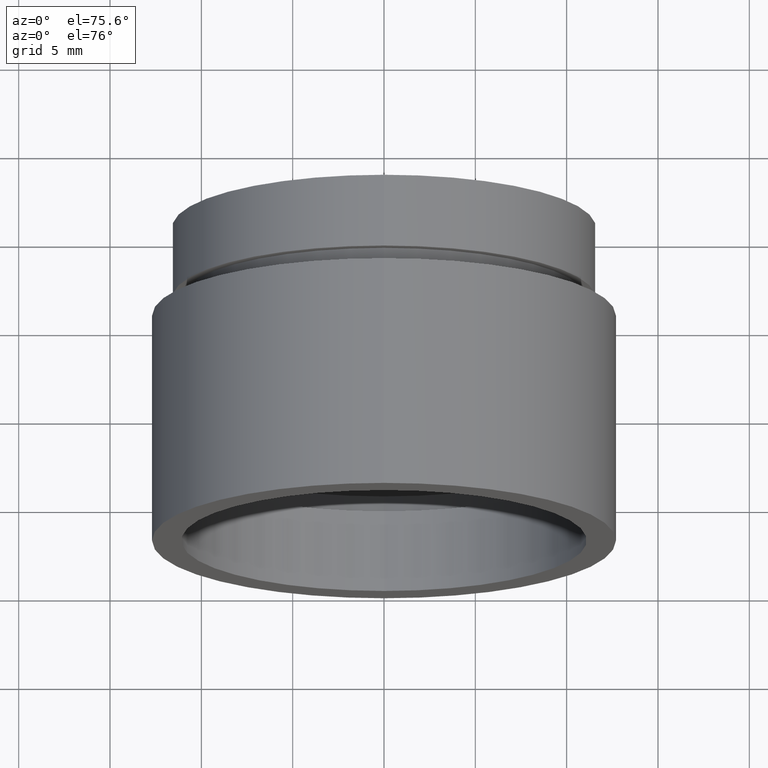
[diagram: clean part render]
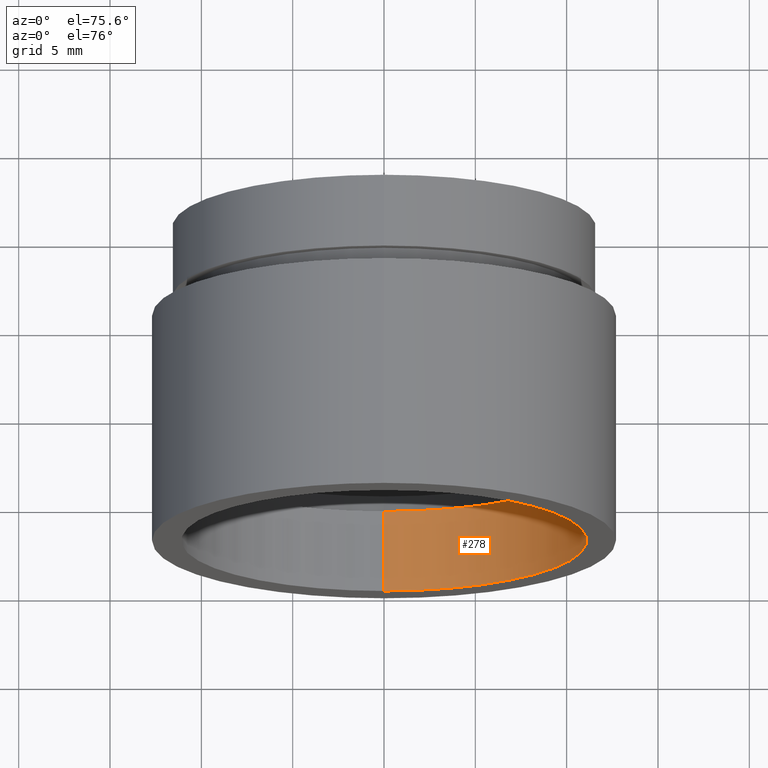
[diagram: same view with one face highlighted and labeled with its STEP entity id]
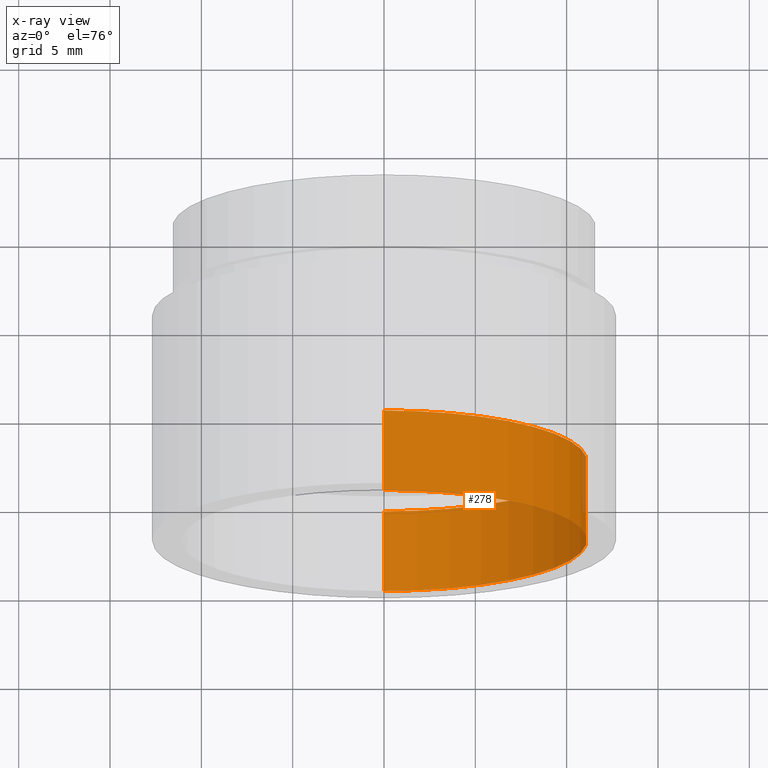
[diagram: x-ray of the same camera — body ghosted, the highlighted face saturated]
A machine part, auxiliary view. The second image highlights one B-rep face of the part: STEP entity #278.
The next image is the same camera in x-ray: the body ghosted, the highlighted face saturated — about 1% of this face is hidden behind the body in this view.
In plain terms, the highlighted cylindrical surface (partial cylindrical patch) has radius 11.1 mm, axis along (-0, 1, -0).
Its self-contained STEP definition (entity closure, byte-faithful):
#59 = AXIS2_PLACEMENT_3D ( 'NONE', #170, #354, #74 ) ;
#74 = DIRECTION ( 'NONE',  ( 0.0000000000000000000, 0.0000000000000000000, 1.000000000000000000 ) ) ;
#81 = EDGE_CURVE ( 'NONE', #469, #373, #534, .T. ) ;
#84 = EDGE_LOOP ( 'NONE', ( #581, #344, #101, #109 ) ) ;
#96 = FACE_OUTER_BOUND ( 'NONE', #84, .T. ) ;
#101 = ORIENTED_EDGE ( 'NONE', *, *, #478, .T. ) ;
#109 = ORIENTED_EDGE ( 'NONE', *, *, #81, .T. ) ;
#120 = VECTOR ( 'NONE', #412, 1000.000000000000000 ) ;
#125 = CARTESIAN_POINT ( 'NONE',  ( 0.0000000000000000000, -2.775557561562891400E-014, 0.0000000000000000000 ) ) ;
#136 = VERTEX_POINT ( 'NONE', #612 ) ;
#138 = CARTESIAN_POINT ( 'NONE',  ( 0.0000000000000000000, 4.499999999999976000, 11.10000000000001900 ) ) ;
#149 = DIRECTION ( 'NONE',  ( 0.0000000000000000000, 0.0000000000000000000, 1.000000000000000000 ) ) ;
#170 = CARTESIAN_POINT ( 'NONE',  ( 0.0000000000000000000, 4.499999999999976000, 0.0000000000000000000 ) ) ;
#237 = CIRCLE ( 'NONE', #523, 11.10000000000002300 ) ;
#250 = VECTOR ( 'NONE', #294, 1000.000000000000000 ) ;
#276 = CYLINDRICAL_SURFACE ( 'NONE', #566, 11.10000000000002100 ) ;
#278 = ADVANCED_FACE ( 'NONE', ( #96 ), #276, .F. ) ;
#283 = CARTESIAN_POINT ( 'NONE',  ( 1.359357947053564500E-015, 4.499999999999976000, -11.10000000000001900 ) ) ;
#294 = DIRECTION ( 'NONE',  ( -0.0000000000000000000, 1.000000000000000000, -0.0000000000000000000 ) ) ;
#313 = CARTESIAN_POINT ( 'NONE',  ( 0.0000000000000000000, 161.3761669434274500, 0.0000000000000000000 ) ) ;
#343 = EDGE_CURVE ( 'NONE', #136, #620, #237, .T. ) ;
#344 = ORIENTED_EDGE ( 'NONE', *, *, #343, .F. ) ;
#354 = DIRECTION ( 'NONE',  ( -0.0000000000000000000, 1.000000000000000000, -0.0000000000000000000 ) ) ;
#361 = DIRECTION ( 'NONE',  ( 0.0000000000000000000, 0.0000000000000000000, 1.000000000000000000 ) ) ;
#373 = VERTEX_POINT ( 'NONE', #283 ) ;
#409 = CARTESIAN_POINT ( 'NONE',  ( 1.359357947053564500E-015, 161.3761669434274500, -11.10000000000002100 ) ) ;
#412 = DIRECTION ( 'NONE',  ( -0.0000000000000000000, 1.000000000000000000, -0.0000000000000000000 ) ) ;
#414 = DIRECTION ( 'NONE',  ( -0.0000000000000000000, 1.000000000000000000, -0.0000000000000000000 ) ) ;
#460 = CARTESIAN_POINT ( 'NONE',  ( 1.359357947053564900E-015, -2.775557561562891400E-014, -11.10000000000002300 ) ) ;
#462 = DIRECTION ( 'NONE',  ( -0.0000000000000000000, 1.000000000000000000, -0.0000000000000000000 ) ) ;
#469 = VERTEX_POINT ( 'NONE', #138 ) ;
#478 = EDGE_CURVE ( 'NONE', #136, #469, #615, .T. ) ;
#492 = LINE ( 'NONE', #409, #120 ) ;
#523 = AXIS2_PLACEMENT_3D ( 'NONE', #125, #462, #149 ) ;
#524 = EDGE_CURVE ( 'NONE', #620, #373, #492, .T. ) ;
#534 = CIRCLE ( 'NONE', #59, 11.10000000000001900 ) ;
#566 = AXIS2_PLACEMENT_3D ( 'NONE', #313, #414, #361 ) ;
#581 = ORIENTED_EDGE ( 'NONE', *, *, #524, .F. ) ;
#583 = CARTESIAN_POINT ( 'NONE',  ( 0.0000000000000000000, 161.3761669434274500, 11.10000000000002100 ) ) ;
#612 = CARTESIAN_POINT ( 'NONE',  ( 0.0000000000000000000, -2.775557561562891400E-014, 11.10000000000002300 ) ) ;
#615 = LINE ( 'NONE', #583, #250 ) ;
#620 = VERTEX_POINT ( 'NONE', #460 ) ;